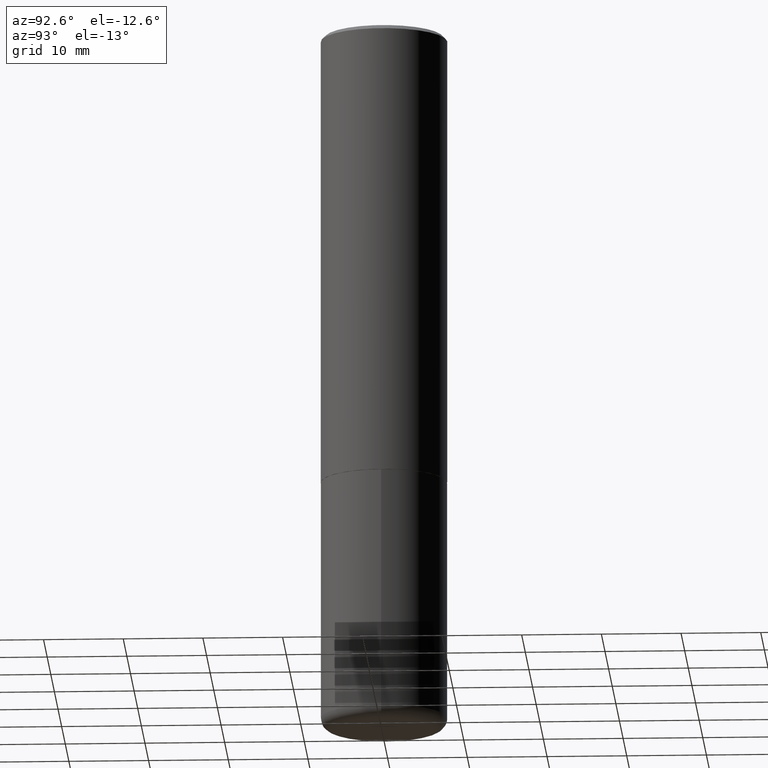
[diagram: clean part render]
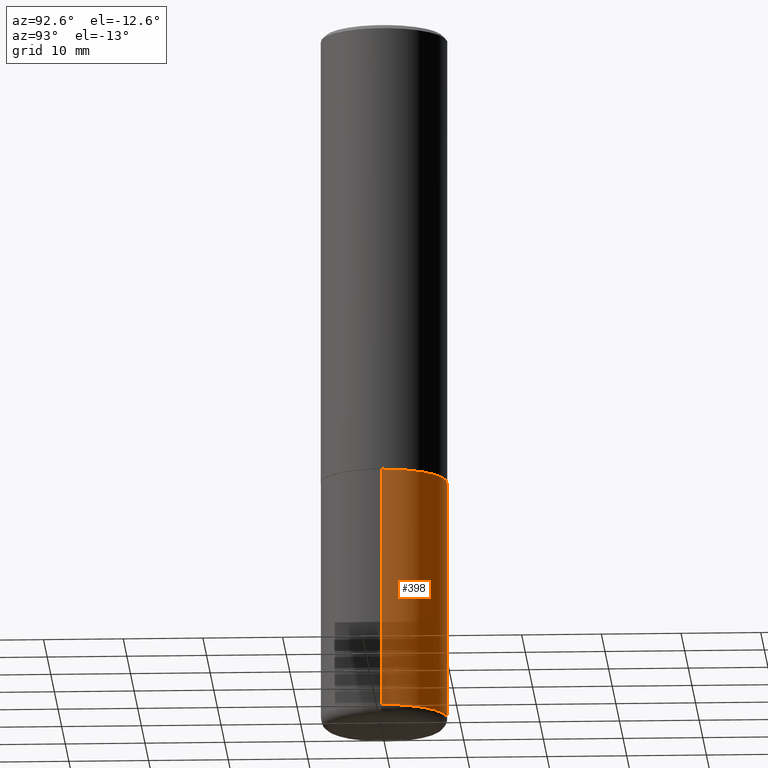
[diagram: same view with one face highlighted and labeled with its STEP entity id]
A machine part, auxiliary view. The second image highlights one B-rep face of the part: STEP entity #398.
In plain terms, the highlighted cylindrical surface (partial cylindrical patch) has radius 7.9375 mm, axis along (-0, 0, 1).
Its self-contained STEP definition (entity closure, byte-faithful):
#19 = CARTESIAN_POINT ( 'NONE',  ( 0.3125000000000000000, -1.003800884917403522E-14, -2.249999999999999556 ) ) ;
#24 = VERTEX_POINT ( 'NONE', #336 ) ;
#26 = DIRECTION ( 'NONE',  ( 1.000000000000000000, -6.982962677686269077E-15, 0.000000000000000000 ) ) ;
#35 = AXIS2_PLACEMENT_3D ( 'NONE', #297, #262, #26 ) ;
#52 = DIRECTION ( 'NONE',  ( -2.445468806185136597E-29, 3.491481338843145583E-15, 1.000000000000000000 ) ) ;
#69 = CARTESIAN_POINT ( 'NONE',  ( 0.3125000000000000000, -2.182175836776958347E-15, 1.523805242436230075E-29 ) ) ;
#75 = AXIS2_PLACEMENT_3D ( 'NONE', #133, #127, #382 ) ;
#85 = FACE_OUTER_BOUND ( 'NONE', #308, .T. ) ;
#88 = CYLINDRICAL_SURFACE ( 'NONE', #234, 0.3125000000000000000 ) ;
#107 = ORIENTED_EDGE ( 'NONE', *, *, #301, .T. ) ;
#114 = ORIENTED_EDGE ( 'NONE', *, *, #147, .T. ) ;
#127 = DIRECTION ( 'NONE',  ( -2.445468806185136597E-29, 3.491481338843145583E-15, 1.000000000000000000 ) ) ;
#133 = CARTESIAN_POINT ( 'NONE',  ( 8.412412693276869938E-29, -1.201069580562042103E-14, -3.439999999999999947 ) ) ;
#134 = ORIENTED_EDGE ( 'NONE', *, *, #258, .F. ) ;
#136 = ORIENTED_EDGE ( 'NONE', *, *, #253, .F. ) ;
#138 = VERTEX_POINT ( 'NONE', #161 ) ;
#146 = VERTEX_POINT ( 'NONE', #263 ) ;
#147 = EDGE_CURVE ( 'NONE', #24, #138, #210, .T. ) ;
#161 = CARTESIAN_POINT ( 'NONE',  ( -0.3125000000000000000, -9.790249756370107944E-15, -3.439999999999999947 ) ) ;
#175 = VERTEX_POINT ( 'NONE', #19 ) ;
#203 = DIRECTION ( 'NONE',  ( -2.445468806185136877E-29, 3.491481338843145188E-15, 1.000000000000000000 ) ) ;
#210 = CIRCLE ( 'NONE', #75, 0.3125000000000000000 ) ;
#212 = VECTOR ( 'NONE', #203, 39.37007874015748143 ) ;
#223 = DIRECTION ( 'NONE',  ( 1.000000000000000000, -6.982962677686266711E-15, 4.876176775795936353E-29 ) ) ;
#230 = CARTESIAN_POINT ( 'NONE',  ( -0.3125000000000000000, 2.220446049250313081E-15, -1.537167215704658232E-29 ) ) ;
#234 = AXIS2_PLACEMENT_3D ( 'NONE', #338, #52, #223 ) ;
#251 = CIRCLE ( 'NONE', #35, 0.3125000000000000000 ) ;
#253 = EDGE_CURVE ( 'NONE', #175, #146, #251, .T. ) ;
#258 = EDGE_CURVE ( 'NONE', #24, #175, #329, .T. ) ;
#262 = DIRECTION ( 'NONE',  ( -2.445468806185136597E-29, 3.491481338843145583E-15, 1.000000000000000000 ) ) ;
#263 = CARTESIAN_POINT ( 'NONE',  ( -0.3125000000000000000, -7.712818359758435078E-15, -2.249999999999999556 ) ) ;
#297 = CARTESIAN_POINT ( 'NONE',  ( 5.502304813916556222E-29, -7.855833012397076871E-15, -2.249999999999999556 ) ) ;
#301 = EDGE_CURVE ( 'NONE', #138, #146, #304, .T. ) ;
#304 = LINE ( 'NONE', #230, #406 ) ;
#308 = EDGE_LOOP ( 'NONE', ( #114, #107, #136, #134 ) ) ;
#329 = LINE ( 'NONE', #69, #212 ) ;
#336 = CARTESIAN_POINT ( 'NONE',  ( 0.3125000000000000000, -1.419287164239737937E-14, -3.439999999999999947 ) ) ;
#338 = CARTESIAN_POINT ( 'NONE',  ( 0.000000000000000000, 0.000000000000000000, 0.000000000000000000 ) ) ;
#382 = DIRECTION ( 'NONE',  ( 1.000000000000000000, -6.982962677686269077E-15, 0.000000000000000000 ) ) ;
#385 = DIRECTION ( 'NONE',  ( -2.445468806185136877E-29, 3.491481338843145188E-15, 1.000000000000000000 ) ) ;
#398 = ADVANCED_FACE ( 'NONE', ( #85 ), #88, .T. ) ;
#406 = VECTOR ( 'NONE', #385, 39.37007874015748143 ) ;